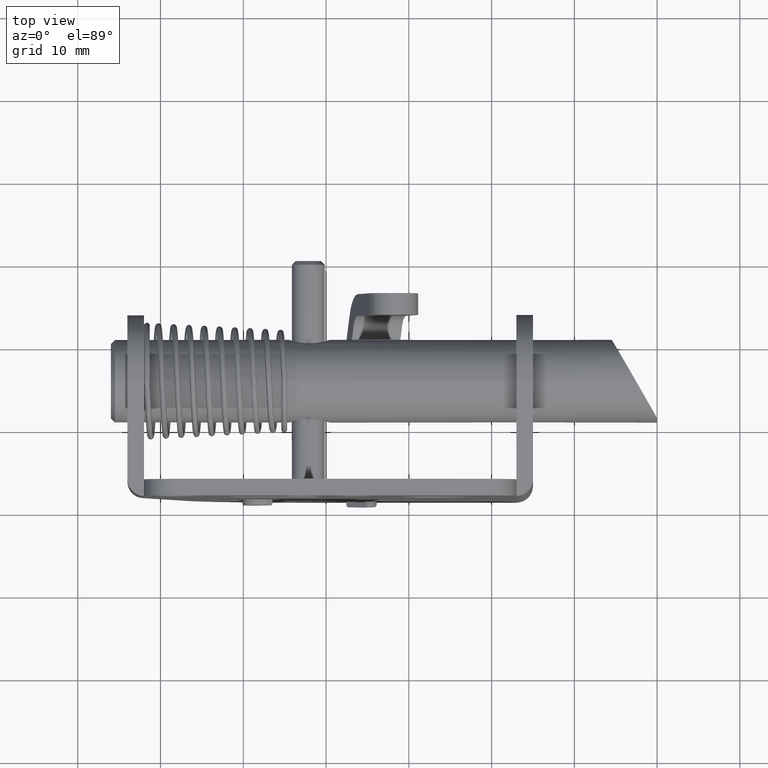
[diagram: clean part render]
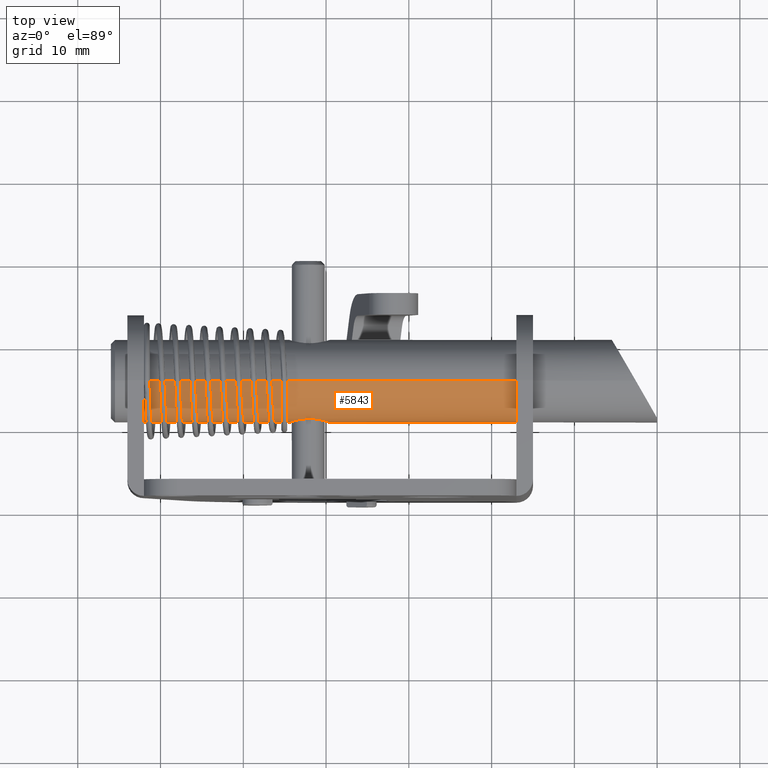
[diagram: same view with one face highlighted and labeled with its STEP entity id]
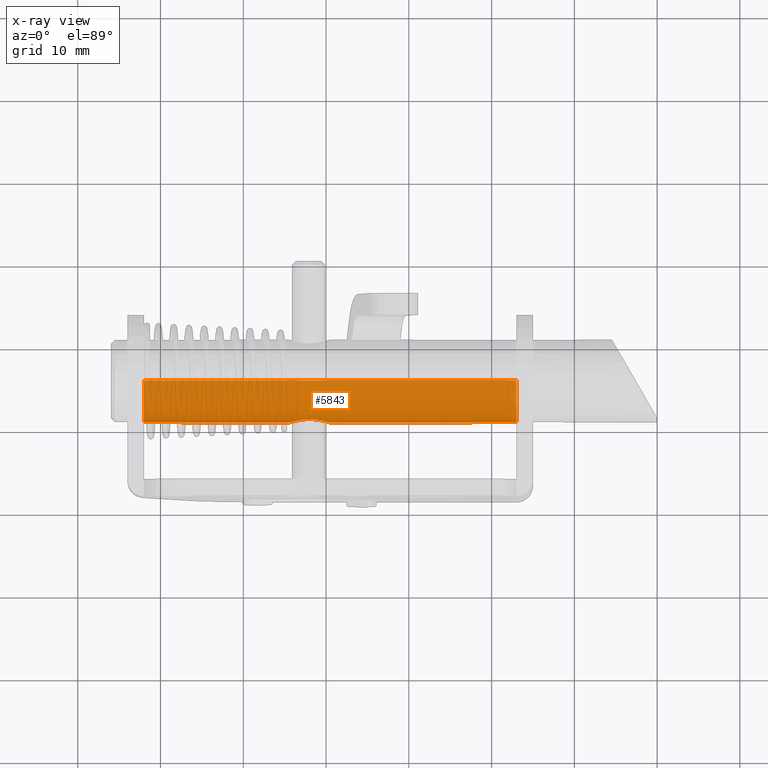
[diagram: x-ray of the same camera — body ghosted, the highlighted face saturated]
A machine part, top view. The second image highlights one B-rep face of the part: STEP entity #5843.
The next image is the same camera in x-ray: the body ghosted, the highlighted face saturated — about 0% of this face is hidden behind the body in this view.
In plain terms, the highlighted cylindrical surface (partial cylindrical patch) has radius 5 mm, axis along (1, -0, 0).
Its self-contained STEP definition (entity closure, byte-faithful):
#149 = CARTESIAN_POINT ( 'NONE',  ( -17.74631688908962300, 4.820061870947369300, -8.084064851294856500 ) ) ;
#162 = B_SPLINE_CURVE_WITH_KNOTS ( 'NONE', 3,
 ( #8609, #9896, #11134, #3801, #12363, #5026, #13597, #6249, #14833, #7489, #149, #8710, #1383, #9954, #2617, #11183, #3856, #12422, #5074, #13650, #6305, #14883, #7532, #203, #8766, #1431, #10004, #2677, #11233, #3902, #12471, #5131 ),
 .UNSPECIFIED., .F., .F.,
 ( 4, 2, 2, 2, 2, 2, 2, 2, 2, 2, 2, 2, 2, 2, 2, 4 ),
 ( 0.005439032659902391300, 0.005889765946220234000, 0.006340499232538075900, 0.006791232518855918600, 0.007241965805173761400, 0.007692699091491603200, 0.008143432377809446000, 0.008594165664127288700, 0.009044898950445131500, 0.009495632236762974200, 0.009946365523080816900, 0.01039709880939865800, 0.01084783209571650100, 0.01174929866835217900, 0.01220003195467001800, 0.01265076524098785800 ),
 .UNSPECIFIED. ) ;
#170 = CARTESIAN_POINT ( 'NONE',  ( -44.64999999990504900, -1.622483468336492400E-014, -1.749999999682359900 ) ) ;
#203 = CARTESIAN_POINT ( 'NONE',  ( -17.74107395912755400, 4.821460498712363000, -5.420918900422925000 ) ) ;
#345 = EDGE_CURVE ( 'NONE', #4787, #8718, #15791, .T. ) ;
#453 = CARTESIAN_POINT ( 'NONE',  ( -22.06522610744952900, 4.970951196194132400, -7.349115971252747800 ) ) ;
#508 = CARTESIAN_POINT ( 'NONE',  ( -19.64999999981276300, 4.557189138830391800, -8.807189138513864500 ) ) ;
#671 = ORIENTED_EDGE ( 'NONE', *, *, #13534, .T. ) ;
#962 = EDGE_CURVE ( 'NONE', #12921, #7743, #15743, .T. ) ;
#1104 = DIRECTION ( 'NONE',  ( -1.000000000000000000, 0.0000000000000000000, 0.0000000000000000000 ) ) ;
#1383 = CARTESIAN_POINT ( 'NONE',  ( -17.45817417877638200, 4.902034838069734900, -7.743608613490419400 ) ) ;
#1431 = CARTESIAN_POINT ( 'NONE',  ( -18.20853878833967700, 4.707052973569666700, -5.053261758077852100 ) ) ;
#1585 = CARTESIAN_POINT ( 'NONE',  ( 0.3490000000000435000, -1.561251128379124800E-014, -11.74999999968236100 ) ) ;
#1607 = DIRECTION ( 'NONE',  ( 1.000000000000000000, 0.0000000000000000000, 0.0000000000000000000 ) ) ;
#1629 = CARTESIAN_POINT ( 'NONE',  ( -20.82342837033755200, 4.653877818626887700, -4.919408691867447600 ) ) ;
#1684 = CARTESIAN_POINT ( 'NONE',  ( -21.75653820677589000, 4.876580682195368300, -7.859884700101480900 ) ) ;
#1888 = VERTEX_POINT ( 'NONE', #14355 ) ;
#2324 = ORIENTED_EDGE ( 'NONE', *, *, #13690, .F. ) ;
#2331 = CARTESIAN_POINT ( 'NONE',  ( 937.3500000000000200, -1.622483468336492400E-014, -1.749999999682359900 ) ) ;
#2617 = CARTESIAN_POINT ( 'NONE',  ( -17.25196189518618400, 4.966470894578471000, -7.346219229791539200 ) ) ;
#2677 = CARTESIAN_POINT ( 'NONE',  ( -18.90587216342737200, 4.597310564733378500, -4.783494947454830300 ) ) ;
#2827 = DIRECTION ( 'NONE',  ( -1.000000000000000000, 0.0000000000000000000, 0.0000000000000000000 ) ) ;
#2869 = CARTESIAN_POINT ( 'NONE',  ( -21.44641521057483400, 4.791857814283386800, -5.319314057084819900 ) ) ;
#2917 = CARTESIAN_POINT ( 'NONE',  ( -21.44819010367913100, 4.792305803084254000, -8.179203371934743700 ) ) ;
#3164 = ORIENTED_EDGE ( 'NONE', *, *, #7105, .T. ) ;
#3616 = DIRECTION ( 'NONE',  ( -1.000000000000000000, 0.0000000000000000000, 0.0000000000000000000 ) ) ;
#3801 = CARTESIAN_POINT ( 'NONE',  ( -19.05470197241536900, 4.582248592931675200, -8.750900380622132600 ) ) ;
#3856 = CARTESIAN_POINT ( 'NONE',  ( -17.15059307160449400, 4.999802310153196300, -6.907349663078717200 ) ) ;
#3902 = CARTESIAN_POINT ( 'NONE',  ( -19.34724788121959100, 4.562474594856954700, -4.704409481110065600 ) ) ;
#4099 = CARTESIAN_POINT ( 'NONE',  ( -21.75468067415657800, 4.876041242344739700, -5.637776373220634500 ) ) ;
#4156 = CARTESIAN_POINT ( 'NONE',  ( -21.08326535547075400, 4.707818905697751100, -8.435689989237118900 ) ) ;
#4787 = VERTEX_POINT ( 'NONE', #8093 ) ;
#5026 = CARTESIAN_POINT ( 'NONE',  ( -18.62179064998770500, 4.634711834616593000, -8.626654490545217200 ) ) ;
#5074 = CARTESIAN_POINT ( 'NONE',  ( -17.16984231842254600, 4.993325625076485300, -6.453623663098702500 ) ) ;
#5131 = CARTESIAN_POINT ( 'NONE',  ( -19.64999999981275300, 4.557189138830383800, -4.692810860850867600 ) ) ;
#5135 = CYLINDRICAL_SURFACE ( 'NONE', #13202, 5.000000000000000000 ) ;
#5269 = CARTESIAN_POINT ( 'NONE',  ( -20.25066885551893500, 4.578410832645466200, -4.738086101308592600 ) ) ;
#5327 = CARTESIAN_POINT ( 'NONE',  ( -21.99031723657516200, 4.947819809472682600, -6.017699288937176800 ) ) ;
#5375 = CARTESIAN_POINT ( 'NONE',  ( -20.67925549751088700, 4.634871108716859900, -8.626262695055995500 ) ) ;
#5723 = CARTESIAN_POINT ( 'NONE',  ( 937.3500000000000200, -1.561251128379124800E-014, -6.749999999682359900 ) ) ;
#5843 = ADVANCED_FACE ( 'NONE', ( #10222, #8391 ), #5135, .T. ) ;
#6198 = ORIENTED_EDGE ( 'NONE', *, *, #962, .T. ) ;
#6249 = CARTESIAN_POINT ( 'NONE',  ( -18.22099757191142500, 4.706943838674207300, -8.438110446140157700 ) ) ;
#6305 = CARTESIAN_POINT ( 'NONE',  ( -17.30711832798650500, 4.948632370242577800, -6.023082358210765500 ) ) ;
#6502 = CARTESIAN_POINT ( 'NONE',  ( -19.95249930338335200, 4.557189138830383800, -4.692810860850870300 ) ) ;
#6551 = CARTESIAN_POINT ( 'NONE',  ( -22.12902720709850300, 4.992948519260370900, -6.447268803424882400 ) ) ;
#6605 = CARTESIAN_POINT ( 'NONE',  ( -20.24849192803348400, 4.582530358939374400, -8.750257485262007900 ) ) ;
#6955 = DIRECTION ( 'NONE',  ( -1.000000000000000000, 0.0000000000000000000, 0.0000000000000000000 ) ) ;
#7105 = EDGE_CURVE ( 'NONE', #13707, #1888, #11248, .T. ) ;
#7192 = AXIS2_PLACEMENT_3D ( 'NONE', #10154, #2827, #11384 ) ;
#7291 = ORIENTED_EDGE ( 'NONE', *, *, #345, .F. ) ;
#7489 = CARTESIAN_POINT ( 'NONE',  ( -17.85580320270012300, 4.791299641019315400, -8.182527250714052500 ) ) ;
#7532 = CARTESIAN_POINT ( 'NONE',  ( -17.54231912004215800, 4.876911926823552800, -5.641547038543045300 ) ) ;
#7743 = VERTEX_POINT ( 'NONE', #13782 ) ;
#7784 = CARTESIAN_POINT ( 'NONE',  ( -22.15065368183746100, 5.000217893739702800, -7.048673132650150400 ) ) ;
#7839 = CARTESIAN_POINT ( 'NONE',  ( -19.80078477297332600, 4.557189138830382900, -8.807189138513848500 ) ) ;
#7976 = VECTOR ( 'NONE', #3616, 1000.000000000000000 ) ;
#8093 = CARTESIAN_POINT ( 'NONE',  ( 0.3490000000000435000, -1.622483468336492400E-014, -1.749999999682359900 ) ) ;
#8109 = ORIENTED_EDGE ( 'NONE', *, *, #12032, .F. ) ;
#8391 = FACE_BOUND ( 'NONE', #8715, .T. ) ;
#8478 = CARTESIAN_POINT ( 'NONE',  ( 937.3500000000000200, -1.561251128379124800E-014, -11.74999999968236100 ) ) ;
#8609 = CARTESIAN_POINT ( 'NONE',  ( -19.64999999981276300, 4.557189138830391800, -8.807189138513864500 ) ) ;
#8710 = CARTESIAN_POINT ( 'NONE',  ( -17.54779444355744300, 4.875323595176197100, -7.865322962051005900 ) ) ;
#8715 = EDGE_LOOP ( 'NONE', ( #6198, #671 ) ) ;
#8718 = VERTEX_POINT ( 'NONE', #170 ) ;
#8766 = CARTESIAN_POINT ( 'NONE',  ( -17.85079656837857000, 4.792565314335691400, -5.321667126380416900 ) ) ;
#8944 = CARTESIAN_POINT ( 'NONE',  ( 0.3490000000000435000, -1.561251128379124800E-014, -6.749999999682359900 ) ) ;
#8968 = CARTESIAN_POINT ( 'NONE',  ( -19.64999999981275300, 4.557189138830383800, -4.692810860850867600 ) ) ;
#9016 = CARTESIAN_POINT ( 'NONE',  ( -21.84555497526599100, 4.903157624898631700, -7.738113981458726100 ) ) ;
#9245 = CARTESIAN_POINT ( 'NONE',  ( -19.64999999981275300, 4.557189138830383800, -4.692810860850867600 ) ) ;
#9644 = VECTOR ( 'NONE', #1104, 1000.000000000000000 ) ;
#9896 = CARTESIAN_POINT ( 'NONE',  ( -19.49929534749159600, 4.557189138830382900, -8.807189138513855700 ) ) ;
#9954 = CARTESIAN_POINT ( 'NONE',  ( -17.31104281309635000, 4.947386726356909600, -7.485233439448544200 ) ) ;
#10004 = CARTESIAN_POINT ( 'NONE',  ( -18.47674817827042300, 4.653859502347143200, -4.919366795406914700 ) ) ;
#10154 = CARTESIAN_POINT ( 'NONE',  ( -44.64999999990504900, -1.561251128379124800E-014, -6.749999999682359900 ) ) ;
#10176 = DIRECTION ( 'NONE',  ( 0.0000000000000000000, 0.0000000000000000000, -1.000000000000000000 ) ) ;
#10198 = CARTESIAN_POINT ( 'NONE',  ( -21.08875318648285500, 4.706489151374712200, -5.051761446765775400 ) ) ;
#10222 = FACE_OUTER_BOUND ( 'NONE', #14376, .T. ) ;
#10251 = CARTESIAN_POINT ( 'NONE',  ( -21.55792046135493900, 4.821192529052531500, -8.080032253424178600 ) ) ;
#10481 = CIRCLE ( 'NONE', #13858, 5.000000000000000000 ) ;
#11134 = CARTESIAN_POINT ( 'NONE',  ( -19.35010922795971700, 4.562349325162555800, -8.795867330927961800 ) ) ;
#11183 = CARTESIAN_POINT ( 'NONE',  ( -17.17142768251418200, 4.992796133997655000, -7.055446036463223400 ) ) ;
#11233 = CARTESIAN_POINT ( 'NONE',  ( -19.05138104310459500, 4.582541199532510500, -4.749767224984586800 ) ) ;
#11248 = LINE ( 'NONE', #8478, #7976 ) ;
#11384 = DIRECTION ( 'NONE',  ( 0.0000000000000000000, 0.0000000000000000000, 1.000000000000000000 ) ) ;
#11429 = CARTESIAN_POINT ( 'NONE',  ( -21.55606490342739100, 4.820696910842841900, -5.418196378236312500 ) ) ;
#11482 = CARTESIAN_POINT ( 'NONE',  ( -21.20941249613779400, 4.735264730919349900, -8.358130938892200500 ) ) ;
#12032 = EDGE_CURVE ( 'NONE', #13707, #4787, #10481, .T. ) ;
#12363 = CARTESIAN_POINT ( 'NONE',  ( -18.90724441561437900, 4.597164456489817800, -8.716841332377377700 ) ) ;
#12422 = CARTESIAN_POINT ( 'NONE',  ( -17.14943160036326800, 5.000189465747723700, -6.605475386520215200 ) ) ;
#12471 = CARTESIAN_POINT ( 'NONE',  ( -19.49883071588425300, 4.557189138830383800, -4.692810860850868500 ) ) ;
#12667 = CARTESIAN_POINT ( 'NONE',  ( -21.84386196353458200, 4.902648917829046700, -5.759435117164376700 ) ) ;
#12715 = CARTESIAN_POINT ( 'NONE',  ( -20.81882606765334000, 4.657706557667191700, -8.569582152923686600 ) ) ;
#12921 = VERTEX_POINT ( 'NONE', #9245 ) ;
#13062 = DIRECTION ( 'NONE',  ( 0.0000000000000000000, 0.0000000000000000000, -1.000000000000000000 ) ) ;
#13163 = CIRCLE ( 'NONE', #7192, 5.000000000000000000 ) ;
#13202 = AXIS2_PLACEMENT_3D ( 'NONE', #5723, #6955, #13062 ) ;
#13534 = EDGE_CURVE ( 'NONE', #7743, #12921, #162, .T. ) ;
#13597 = CARTESIAN_POINT ( 'NONE',  ( -18.48456611923153000, 4.657132929499080200, -8.571029943655919000 ) ) ;
#13650 = CARTESIAN_POINT ( 'NONE',  ( -17.24827345190633600, 4.967666052583812300, -6.163967815464985700 ) ) ;
#13690 = EDGE_CURVE ( 'NONE', #8718, #1888, #13163, .T. ) ;
#13707 = VERTEX_POINT ( 'NONE', #1585 ) ;
#13782 = CARTESIAN_POINT ( 'NONE',  ( -19.64999999981276300, 4.557189138830391800, -8.807189138513864500 ) ) ;
#13858 = AXIS2_PLACEMENT_3D ( 'NONE', #8944, #1607, #10176 ) ;
#13893 = CARTESIAN_POINT ( 'NONE',  ( -22.04932101021680400, 4.966886644234000900, -6.157363385472841300 ) ) ;
#13946 = CARTESIAN_POINT ( 'NONE',  ( -20.39381917934045100, 4.597282848635871700, -8.716566120133814300 ) ) ;
#14355 = CARTESIAN_POINT ( 'NONE',  ( -44.64999999990504900, -1.561251128379124800E-014, -11.74999999968236100 ) ) ;
#14376 = EDGE_LOOP ( 'NONE', ( #7291, #8109, #3164, #2324 ) ) ;
#14833 = CARTESIAN_POINT ( 'NONE',  ( -18.09366179860246100, 4.734584103214072700, -8.360093147476249000 ) ) ;
#14883 = CARTESIAN_POINT ( 'NONE',  ( -17.45343091008462000, 4.903463018711310200, -5.763378482875706000 ) ) ;
#15138 = CARTESIAN_POINT ( 'NONE',  ( -22.14966724327150500, 4.999889081287811600, -6.595224901146757200 ) ) ;
#15185 = CARTESIAN_POINT ( 'NONE',  ( -19.95267728600803300, 4.562471746139007000, -8.795596749997953300 ) ) ;
#15743 = B_SPLINE_CURVE_WITH_KNOTS ( 'NONE', 3,
 ( #8968, #6502, #5269, #1629, #10198, #2869, #11429, #4099, #12667, #5327, #13893, #6551, #15138, #7784, #453, #9016, #1684, #10251, #2917, #11482, #4156, #12715, #5375, #13946, #6605, #15185, #7839, #508 ),
 .UNSPECIFIED., .F., .F.,
 ( 4, 2, 2, 2, 2, 2, 2, 2, 2, 2, 2, 2, 2, 4 ),
 ( 0.01265076524098785800, 0.01355271107061634500, 0.01445465690024483300, 0.01490562981505908100, 0.01535660272987332900, 0.01580757564468757800, 0.01625854855950182400, 0.01716049438913032400, 0.01761146730394457300, 0.01806244021875882300, 0.01851341313357307200, 0.01896438604838732200, 0.01941535896320157100, 0.01986633187801582100 ),
 .UNSPECIFIED. ) ;
#15791 = LINE ( 'NONE', #2331, #9644 ) ;